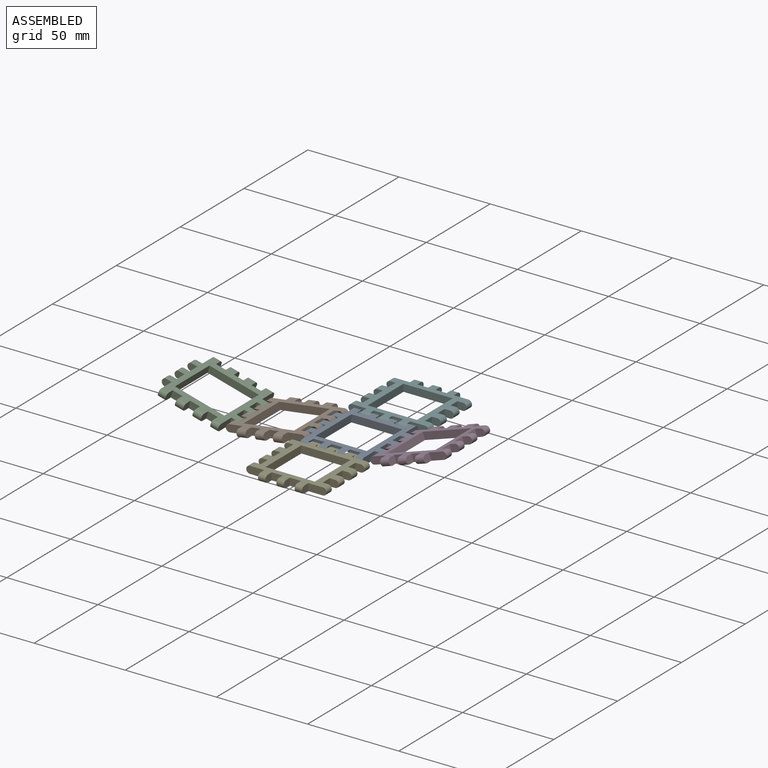
[diagram: assembled view]
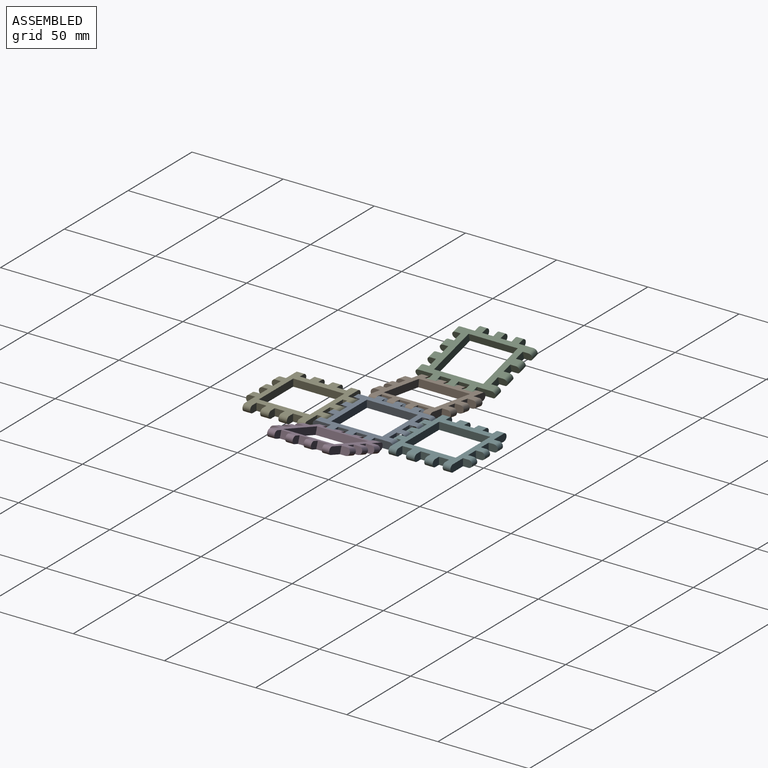
[diagram: assembled view, second angle]
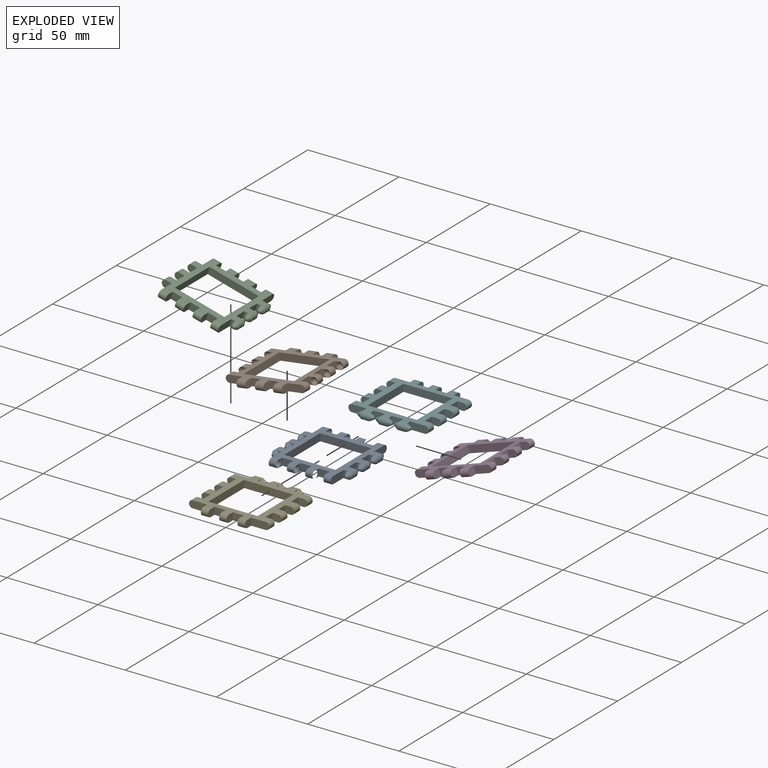
[diagram: exploded view]
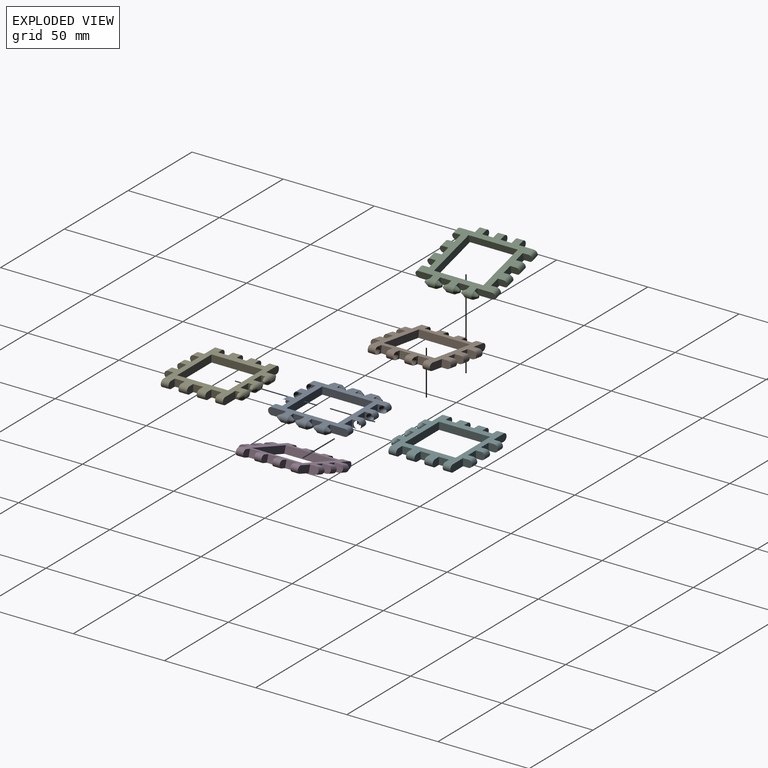
[diagram: exploded view, second angle]
ASSEMBLY  parts=6 mates=5
PART A: 118 faces, bbox 44x44x4 mm
  f0: plane 4x3mm, normal (1,0,0), area 5.7mm2, adj f24,f42,f43,f101
  f1: plane 4x3mm, normal (1,0,0), area 5.7mm2, adj f22,f42,f43,f99
  f2: plane 4x3mm, normal (1,0,0), area 5.7mm2, adj f20,f42,f43,f91
  f3: plane 28x4mm, normal (-1,0,0), area 112mm2, adj f4,f41,f42,f43
  f4: plane 28x4mm, normal (0,1,0), area 112mm2, adj f3,f5,f42,f43
  f5: plane 28x4mm, normal (1,0,0), area 112mm2, adj f4,f41,f42,f43
  f6: plane 4x3mm, normal (1,0,0), area 5.7mm2, adj f7,f42,f43,f106
  f7: plane 6x4mm, normal (0,-1,0), area 24mm2, adj f6,f8,f42,f43
  f8: plane 4x3mm, normal (-1,0,0), area 5.7mm2, adj f7,f42,f43,f104
  f9: plane 9.95x4mm, normal (1,0,0), area 38.1mm2, adj f10,f42,f43,f50
  f10: plane 4x3mm, normal (0,-1,0), area 5.7mm2, adj f9,f42,f43,f58
  f11: plane 4x3mm, normal (0,1,0), area 5.7mm2, adj f12,f42,f43,f61
  f12: plane 6.05x4mm, normal (1,0,0), area 24.2mm2, adj f11,f13,f42,f43
  f13: plane 4x3mm, normal (0,-1,0), area 5.7mm2, adj f12,f42,f43,f63
  f14: plane 4x3mm, normal (0,1,0), area 5.7mm2, adj f15,f42,f43,f68
  f15: plane 6.05x4mm, normal (1,0,0), area 24.2mm2, adj f14,f16,f42,f43
  f16: plane 4x3mm, normal (0,-1,0), area 5.7mm2, adj f15,f42,f43,f65
  f17: plane 4x3mm, normal (0,1,0), area 5.7mm2, adj f18,f42,f43,f71
  f18: plane 9.95x4mm, normal (1,0,0), area 38.1mm2, adj f17,f42,f43,f54
  f19: plane 4x3mm, normal (-1,0,0), area 5.7mm2, adj f20,f42,f43,f89
  f20: plane 6x4mm, normal (0,1,0), area 24mm2, adj f2,f19,f42,f43
  f21: plane 4x3mm, normal (-1,0,0), area 5.7mm2, adj f22,f42,f43,f94
  f22: plane 6x4mm, normal (0,1,0), area 24mm2, adj f1,f21,f42,f43
  f23: plane 4x3mm, normal (-1,0,0), area 5.7mm2, adj f24,f42,f43,f97
  f24: plane 6x4mm, normal (0,1,0), area 24mm2, adj f0,f23,f42,f43
  f25: plane 9.95x4mm, normal (-1,0,0), area 38.1mm2, adj f26,f42,f43,f57
  f26: plane 4x3mm, normal (0,1,0), area 5.7mm2, adj f25,f42,f43,f86
  f27: plane 4x3mm, normal (0,-1,0), area 5.7mm2, adj f28,f42,f43,f80
  f28: plane 6.05x4mm, normal (-1,0,0), area 24.2mm2, adj f27,f29,f42,f43
  f29: plane 4x3mm, normal (0,1,0), area 5.7mm2, adj f28,f42,f43,f83
  f30: plane 4x3mm, normal (0,-1,0), area 5.7mm2, adj f31,f42,f43,f78
  f31: plane 6.05x4mm, normal (-1,0,0), area 24.2mm2, adj f30,f32,f42,f43
  f32: plane 4x3mm, normal (0,1,0), area 5.7mm2, adj f31,f42,f43,f76
  f33: plane 4x3mm, normal (0,-1,0), area 5.7mm2, adj f34,f42,f43,f73
  f34: plane 9.95x4mm, normal (-1,0,0), area 38.1mm2, adj f33,f42,f43,f53
  f35: plane 4x3mm, normal (1,0,0), area 5.7mm2, adj f36,f42,f43,f116
  f36: plane 6x4mm, normal (0,-1,0), area 24mm2, adj f35,f37,f42,f43
  f37: plane 4x3mm, normal (-1,0,0), area 5.7mm2, adj f36,f42,f43,f112
  f38: plane 4x3mm, normal (1,0,0), area 5.7mm2, adj f39,f42,f43,f114
  f39: plane 6x4mm, normal (0,-1,0), area 24mm2, adj f38,f40,f42,f43
  f40: plane 4x3mm, normal (-1,0,0), area 5.7mm2, adj f39,f42,f43,f109
  f41: plane 28x4mm, normal (0,-1,0), area 112mm2, adj f3,f5,f42,f43
  f42: plane 40x40mm, normal (0,0,1), area 540mm2, adj f0,f1,f2,f3,f4,f5,f6,f7
  f43: plane 40x40mm, normal (0,0,-1), area 540mm2, adj f0,f1,f2,f3,f4,f5,f6,f7
  f44: cylinder r=2mm len=4mm, axis (0,-1,0), area 25.1mm2, adj f42,f43,f58,f60
  f45: cylinder r=2mm len=4mm, axis (0,-1,0), area 25.1mm2, adj f42,f43,f63,f67
  f46: cylinder r=2mm len=4mm, axis (0,-1,0), area 25.1mm2, adj f42,f43,f65,f70
  f47: cylinder r=2mm len=4mm, axis (0,-1,0), area 25.1mm2, adj f42,f43,f73,f75
  f48: cylinder r=2mm len=4mm, axis (0,-1,0), area 25.1mm2, adj f42,f43,f78,f82
  f49: cylinder r=2mm len=4mm, axis (0,-1,0), area 25.1mm2, adj f42,f43,f80,f85
  f50: cylinder r=2mm len=4mm, axis (1,0,0), area 25.1mm2, adj f9,f42,f43,f103
  f51: cylinder r=2mm len=4mm, axis (1,0,0), area 25.1mm2, adj f42,f43,f106,f108
  f52: cylinder r=2mm len=4mm, axis (1,0,0), area 25.1mm2, adj f42,f43,f111,f114
  f53: cylinder r=2mm len=4mm, axis (1,0,0), area 25.1mm2, adj f34,f42,f43,f116
  f54: cylinder r=2mm len=4mm, axis (1,0,0), area 25.1mm2, adj f18,f42,f43,f88
  f55: cylinder r=2mm len=4mm, axis (1,0,0), area 25.1mm2, adj f42,f43,f91,f93
  f56: cylinder r=2mm len=4mm, axis (1,0,0), area 25.1mm2, adj f42,f43,f96,f99
  f57: cylinder r=2mm len=4mm, axis (1,0,0), area 25.1mm2, adj f25,f42,f43,f101
  f58: cone r=2mm half-angle=28.4deg, axis (0,1,0), area 23.5mm2, adj f10,f44,f59
  f59: plane 1.34x1.34mm, normal (0,-1,0), area 1.4mm2, adj f58
  f60: cone r=2mm half-angle=28.4deg, axis (0,-1,0), area 11.7mm2, adj f44,f61,f62
  f61: bspline ~4.01x2.96mm, area 11.7mm2, adj f11,f60,f62
  f62: plane 1.34x1.34mm, normal (0,1,0), area 1.4mm2, adj f60,f61
  f63: cone r=2mm half-angle=28.4deg, axis (0,1,0), area 23.5mm2, adj f13,f45,f64
  f64: plane 1.34x1.34mm, normal (0,-1,0), area 1.4mm2, adj f63
  f65: cone r=2mm half-angle=28.4deg, axis (0,1,0), area 23.5mm2, adj f16,f46,f66
  f66: plane 1.34x1.34mm, normal (0,-1,0), area 1.4mm2, adj f65
  f67: cone r=2mm half-angle=28.4deg, axis (0,-1,0), area 11.7mm2, adj f45,f68,f69
  f68: bspline ~4.01x2.96mm, area 11.7mm2, adj f14,f67,f69
  f69: plane 1.34x1.34mm, normal (0,1,0), area 1.4mm2, adj f67,f68
  f70: cone r=2mm half-angle=28.4deg, axis (0,-1,0), area 11.7mm2, adj f46,f71,f72
  f71: bspline ~4.01x2.96mm, area 11.7mm2, adj f17,f70,f72
  f72: plane 1.34x1.34mm, normal (0,1,0), area 1.4mm2, adj f70,f71
  f73: cone r=2mm half-angle=28.4deg, axis (0,1,0), area 23.5mm2, adj f33,f47,f74
  f74: plane 1.34x1.34mm, normal (0,-1,0), area 1.4mm2, adj f73
  f75: cone r=2mm half-angle=28.4deg, axis (0,-1,0), area 11.7mm2, adj f47,f76,f77
  f76: bspline ~4.01x2.96mm, area 11.7mm2, adj f32,f75,f77
  f77: plane 1.34x1.34mm, normal (0,1,0), area 1.4mm2, adj f75,f76
  f78: cone r=2mm half-angle=28.4deg, axis (0,1,0), area 23.5mm2, adj f30,f48,f79
  f79: plane 1.34x1.34mm, normal (0,-1,0), area 1.4mm2, adj f78
  f80: cone r=2mm half-angle=28.4deg, axis (0,1,0), area 23.5mm2, adj f27,f49,f81
  f81: plane 1.34x1.34mm, normal (0,-1,0), area 1.4mm2, adj f80
  f82: cone r=2mm half-angle=28.4deg, axis (0,-1,0), area 11.7mm2, adj f48,f83,f84
  f83: bspline ~4.01x2.96mm, area 11.7mm2, adj f29,f82,f84
  f84: plane 1.34x1.34mm, normal (0,1,0), area 1.4mm2, adj f82,f83
  f85: cone r=2mm half-angle=28.4deg, axis (0,-1,0), area 11.7mm2, adj f49,f86,f87
  f86: bspline ~4.01x2.96mm, area 11.7mm2, adj f26,f85,f87
  f87: plane 1.34x1.34mm, normal (0,1,0), area 1.4mm2, adj f85,f86
  f88: cone r=2mm half-angle=33.7deg, axis (-1,0,0), area 9.5mm2, adj f54,f89,f90
  f89: bspline ~4.01x2.17mm, area 9.5mm2, adj f19,f88,f90
  f90: plane 1.6x1.6mm, normal (-1,0,0), area 2mm2, adj f88,f89
  f91: cone r=2mm half-angle=33.7deg, axis (1,0,0), area 19mm2, adj f2,f55,f92
  f92: plane 1.6x1.6mm, normal (1,0,0), area 2mm2, adj f91
  f93: cone r=2mm half-angle=33.7deg, axis (-1,0,0), area 9.5mm2, adj f55,f94,f95
  f94: bspline ~4.01x2.17mm, area 9.5mm2, adj f21,f93,f95
  f95: plane 1.6x1.6mm, normal (-1,0,0), area 2mm2, adj f93,f94
  f96: cone r=2mm half-angle=33.7deg, axis (-1,0,0), area 9.5mm2, adj f56,f97,f98
  f97: bspline ~4.01x2.17mm, area 9.5mm2, adj f23,f96,f98
  f98: plane 1.6x1.6mm, normal (-1,0,0), area 2mm2, adj f96,f97
  f99: cone r=2mm half-angle=33.7deg, axis (1,0,0), area 19mm2, adj f1,f56,f100
  f100: plane 1.6x1.6mm, normal (1,0,0), area 2mm2, adj f99
  f101: cone r=2mm half-angle=33.7deg, axis (1,0,0), area 19mm2, adj f0,f57,f102
  f102: plane 1.6x1.6mm, normal (1,0,0), area 2mm2, adj f101
  f103: cone r=2mm half-angle=33.7deg, axis (-1,0,0), area 9.5mm2, adj f50,f104,f105
  f104: bspline ~4.01x2.17mm, area 9.5mm2, adj f8,f103,f105
  f105: plane 1.6x1.6mm, normal (-1,0,0), area 2mm2, adj f103,f104
  f106: cone r=2mm half-angle=33.7deg, axis (1,0,0), area 19mm2, adj f6,f51,f107
  f107: plane 1.6x1.6mm, normal (1,0,0), area 2mm2, adj f106
  f108: cone r=2mm half-angle=33.7deg, axis (-1,0,0), area 9.5mm2, adj f51,f109,f110
  f109: bspline ~4.01x2.17mm, area 9.5mm2, adj f40,f108,f110
  f110: plane 1.6x1.6mm, normal (-1,0,0), area 2mm2, adj f108,f109
  f111: cone r=2mm half-angle=33.7deg, axis (-1,0,0), area 9.5mm2, adj f52,f112,f113
  f112: bspline ~4.01x2.17mm, area 9.5mm2, adj f37,f111,f113
  f113: plane 1.6x1.6mm, normal (-1,0,0), area 2mm2, adj f111,f112
  f114: cone r=2mm half-angle=33.7deg, axis (1,0,0), area 19mm2, adj f38,f52,f115
  f115: plane 1.6x1.6mm, normal (1,0,0), area 2mm2, adj f114
  f116: cone r=2mm half-angle=33.7deg, axis (1,0,0), area 19mm2, adj f35,f53,f117
  f117: plane 1.6x1.6mm, normal (1,0,0), area 2mm2, adj f116
PART B: 88 faces, bbox 44x44x4 mm
  f0: plane 4x3mm, normal (0,-1,0), area 5.7mm2, adj f34,f42,f43,f82
  f1: plane 4x3mm, normal (0,-1,0), area 5.7mm2, adj f36,f42,f43,f79
  f2: plane 4x3mm, normal (0,-1,0), area 5.7mm2, adj f38,f42,f43,f74
  f3: plane 4x3mm, normal (0,-1,0), area 5.7mm2, adj f21,f42,f43,f67
  f4: plane 4x3mm, normal (0,-1,0), area 5.7mm2, adj f19,f42,f43,f64
  f5: plane 4x3mm, normal (0,-1,0), area 5.7mm2, adj f17,f42,f43,f59
  f6: plane 28x4mm, normal (0,-1,0), area 112mm2, adj f7,f41,f42,f43
  f7: plane 28x4mm, normal (-1,0,0), area 112mm2, adj f6,f8,f42,f43
  f8: plane 28x4mm, normal (0,1,0), area 112mm2, adj f7,f41,f42,f43
  f9: plane 5x4mm, normal (-1,0,0), area 18.3mm2, adj f10,f42,f43,f47
  f10: plane 5.2x4mm, normal (0,1,0), area 20.8mm2, adj f9,f11,f42,f43
  f11: plane 5x4mm, normal (1,0,0), area 18.3mm2, adj f10,f42,f43,f49
  f12: plane 5x4mm, normal (-1,0,0), area 18.3mm2, adj f13,f42,f43,f49
  f13: plane 5.2x4mm, normal (0,1,0), area 20.8mm2, adj f12,f14,f42,f43
  f14: plane 5x4mm, normal (1,0,0), area 18.3mm2, adj f13,f42,f43,f48
  f15: plane 5x4mm, normal (-1,0,0), area 18.3mm2, adj f16,f42,f43,f48
  f16: plane 9.5x4mm, normal (0,1,0), area 36.3mm2, adj f15,f42,f43,f57
  f17: plane 6x4mm, normal (-1,0,0), area 24mm2, adj f5,f18,f42,f43
  f18: plane 4x3mm, normal (0,1,0), area 5.7mm2, adj f17,f42,f43,f71
  f19: plane 6x4mm, normal (-1,0,0), area 24mm2, adj f4,f20,f42,f43
  f20: plane 4x3mm, normal (0,1,0), area 5.7mm2, adj f19,f42,f43,f69
  f21: plane 6x4mm, normal (-1,0,0), area 24mm2, adj f3,f22,f42,f43
  f22: plane 4x3mm, normal (0,1,0), area 5.7mm2, adj f21,f42,f43,f61
  f23: plane 9.5x4mm, normal (0,-1,0), area 36.3mm2, adj f24,f42,f43,f54
  f24: plane 5x4mm, normal (-1,0,0), area 18.3mm2, adj f23,f42,f43,f45
  f25: plane 5x4mm, normal (1,0,0), area 18.3mm2, adj f26,f42,f43,f45
  f26: plane 5.2x4mm, normal (0,-1,0), area 20.8mm2, adj f25,f27,f42,f43
  f27: plane 5x4mm, normal (-1,0,0), area 18.3mm2, adj f26,f42,f43,f46
  f28: plane 5x4mm, normal (1,0,0), area 18.3mm2, adj f29,f42,f43,f46
  f29: plane 5.2x4mm, normal (0,-1,0), area 20.8mm2, adj f28,f30,f42,f43
  f30: plane 5x4mm, normal (-1,0,0), area 18.3mm2, adj f29,f42,f43,f44
  f31: plane 5x4mm, normal (1,0,0), area 18.3mm2, adj f32,f42,f43,f44
  f32: plane 9.5x4mm, normal (0,-1,0), area 36.3mm2, adj f31,f42,f43,f50
  f33: plane 4x3mm, normal (0,1,0), area 5.7mm2, adj f34,f42,f43,f76
  f34: plane 6x4mm, normal (1,0,0), area 24mm2, adj f0,f33,f42,f43
  f35: plane 4x3mm, normal (0,1,0), area 5.7mm2, adj f36,f42,f43,f84
  f36: plane 6x4mm, normal (1,0,0), area 24mm2, adj f1,f35,f42,f43
  f37: plane 4x3mm, normal (0,1,0), area 5.7mm2, adj f38,f42,f43,f86
  f38: plane 6x4mm, normal (1,0,0), area 24mm2, adj f2,f37,f42,f43
  f39: plane 9.5x4mm, normal (0,1,0), area 36.3mm2, adj f40,f42,f43,f53
  f40: plane 5x4mm, normal (1,0,0), area 18.3mm2, adj f39,f42,f43,f47
  f41: plane 28x4mm, normal (1,0,0), area 112mm2, adj f6,f8,f42,f43
  f42: plane 40x40mm, normal (0,0,1), area 555.6mm2, adj f0,f1,f2,f3,f4,f5,f6,f7
  f43: plane 40x40mm, normal (0,0,-1), area 555.6mm2, adj f0,f1,f2,f3,f4,f5,f6,f7
  f44: cylinder r=2mm len=4.9mm, axis (1,0,0), area 30.8mm2, adj f30,f31,f42,f43
  f45: cylinder r=2mm len=4.9mm, axis (-1,0,0), area 30.8mm2, adj f24,f25,f42,f43
  f46: cylinder r=2mm len=4.8mm, axis (1,0,0), area 30.2mm2, adj f27,f28,f42,f43
  f47: cylinder r=2mm len=4.9mm, axis (1,0,0), area 30.8mm2, adj f9,f40,f42,f43
  f48: cylinder r=2mm len=4.9mm, axis (-1,0,0), area 30.8mm2, adj f14,f15,f42,f43
  f49: cylinder r=2mm len=4.8mm, axis (1,0,0), area 30.2mm2, adj f11,f12,f42,f43
  f50: cylinder r=2mm len=4mm, axis (0,-1,0), area 25.1mm2, adj f32,f42,f43,f76
  f51: cylinder r=2mm len=4mm, axis (0,-1,0), area 25.1mm2, adj f42,f43,f81,f84
  f52: cylinder r=2mm len=4mm, axis (0,-1,0), area 25.1mm2, adj f42,f43,f78,f86
  f53: cylinder r=2mm len=4mm, axis (0,-1,0), area 25.1mm2, adj f39,f42,f43,f73
  f54: cylinder r=2mm len=4mm, axis (0,-1,0), area 25.1mm2, adj f23,f42,f43,f61
  f55: cylinder r=2mm len=4mm, axis (0,-1,0), area 25.1mm2, adj f42,f43,f66,f69
  f56: cylinder r=2mm len=4mm, axis (0,-1,0), area 25.1mm2, adj f42,f43,f63,f71
  f57: cylinder r=2mm len=4mm, axis (0,-1,0), area 25.1mm2, adj f16,f42,f43,f58
  f58: cone r=2mm half-angle=33.7deg, axis (0,-1,0), area 9.5mm2, adj f57,f59,f60
  f59: bspline ~4.01x2.17mm, area 9.5mm2, adj f5,f58,f60
  f60: plane 1.6x1.6mm, normal (0,-1,0), area 2mm2, adj f58,f59
  f61: cone r=2mm half-angle=33.7deg, axis (0,1,0), area 19mm2, adj f22,f54,f62
  f62: plane 1.6x1.6mm, normal (0,1,0), area 2mm2, adj f61
  f63: cone r=2mm half-angle=33.7deg, axis (0,-1,0), area 9.5mm2, adj f56,f64,f65
  f64: bspline ~4.01x2.17mm, area 9.5mm2, adj f4,f63,f65
  f65: plane 1.6x1.6mm, normal (0,-1,0), area 2mm2, adj f63,f64
  f66: cone r=2mm half-angle=33.7deg, axis (0,-1,0), area 9.5mm2, adj f55,f67,f68
  f67: bspline ~4.01x2.17mm, area 9.5mm2, adj f3,f66,f68
  f68: plane 1.6x1.6mm, normal (0,-1,0), area 2mm2, adj f66,f67
  f69: cone r=2mm half-angle=33.7deg, axis (0,1,0), area 19mm2, adj f20,f55,f70
  f70: plane 1.6x1.6mm, normal (0,1,0), area 2mm2, adj f69
  f71: cone r=2mm half-angle=33.7deg, axis (0,1,0), area 19mm2, adj f18,f56,f72
  f72: plane 1.6x1.6mm, normal (0,1,0), area 2mm2, adj f71
  f73: cone r=2mm half-angle=33.7deg, axis (0,-1,0), area 9.5mm2, adj f53,f74,f75
  f74: bspline ~4.01x2.17mm, area 9.5mm2, adj f2,f73,f75
  f75: plane 1.6x1.6mm, normal (0,-1,0), area 2mm2, adj f73,f74
  f76: cone r=2mm half-angle=33.7deg, axis (0,1,0), area 19mm2, adj f33,f50,f77
  f77: plane 1.6x1.6mm, normal (0,1,0), area 2mm2, adj f76
  f78: cone r=2mm half-angle=33.7deg, axis (0,-1,0), area 9.5mm2, adj f52,f79,f80
  f79: bspline ~4.01x2.17mm, area 9.5mm2, adj f1,f78,f80
  f80: plane 1.6x1.6mm, normal (0,-1,0), area 2mm2, adj f78,f79
  f81: cone r=2mm half-angle=33.7deg, axis (0,-1,0), area 9.5mm2, adj f51,f82,f83
  f82: bspline ~4.01x2.17mm, area 9.5mm2, adj f0,f81,f83
  f83: plane 1.6x1.6mm, normal (0,-1,0), area 2mm2, adj f81,f82
  f84: cone r=2mm half-angle=33.7deg, axis (0,1,0), area 19mm2, adj f35,f51,f85
  f85: plane 1.6x1.6mm, normal (0,1,0), area 2mm2, adj f84
  f86: cone r=2mm half-angle=33.7deg, axis (0,1,0), area 19mm2, adj f37,f52,f87
  f87: plane 1.6x1.6mm, normal (0,1,0), area 2mm2, adj f86
PART C: 73 faces, bbox 44x44x4 mm
  f0: plane 4x3mm, normal (0,-1,0), area 5.7mm2, adj f35,f42,f43,f65
  f1: plane 4x3mm, normal (0,-1,0), area 5.7mm2, adj f33,f42,f43,f63
  f2: plane 4x3mm, normal (0,-1,0), area 5.7mm2, adj f31,f42,f43,f58
  f3: plane 28x4mm, normal (0,-1,0), area 112mm2, adj f4,f41,f42,f43
  f4: plane 27x4mm, normal (-1,0,0), area 108mm2, adj f3,f5,f42,f43
  f5: plane 28x4mm, normal (0,1,0), area 112mm2, adj f4,f41,f42,f43
  f6: plane 5x4mm, normal (-1,0,0), area 18.3mm2, adj f7,f42,f43,f47
  f7: plane 5.4x4mm, normal (0,1,0), area 21.6mm2, adj f6,f8,f42,f43
  f8: plane 5x4mm, normal (1,0,0), area 18.3mm2, adj f7,f42,f43,f45
  f9: plane 5x4mm, normal (-1,0,0), area 18.3mm2, adj f10,f42,f43,f45
  f10: plane 5.5x4mm, normal (0,1,0), area 22mm2, adj f9,f11,f42,f43
  f11: plane 5x4mm, normal (1,0,0), area 18.3mm2, adj f10,f42,f43,f44
  f12: plane 9.95x4mm, normal (-1,0,0), area 38.1mm2, adj f13,f42,f43,f44
  f13: plane 5x4mm, normal (0,1,0), area 18.3mm2, adj f12,f42,f43,f52
  f14: plane 5x4mm, normal (0,-1,0), area 18.3mm2, adj f15,f42,f43,f52
  f15: plane 6.05x4mm, normal (-1,0,0), area 24.2mm2, adj f14,f16,f42,f43
  f16: plane 5x4mm, normal (0,1,0), area 18.3mm2, adj f15,f42,f43,f53
  f17: plane 5x4mm, normal (0,-1,0), area 18.3mm2, adj f18,f42,f43,f53
  f18: plane 6.05x4mm, normal (-1,0,0), area 24.2mm2, adj f17,f19,f42,f43
  f19: plane 5x4mm, normal (0,1,0), area 18.3mm2, adj f18,f42,f43,f54
  f20: plane 5x4mm, normal (0,-1,0), area 18.3mm2, adj f21,f42,f43,f54
  f21: plane 9.95x4mm, normal (-1,0,0), area 38.1mm2, adj f20,f42,f43,f48
  f22: plane 5x4mm, normal (1,0,0), area 18.3mm2, adj f23,f42,f43,f48
  f23: plane 5.5x4mm, normal (0,-1,0), area 22mm2, adj f22,f24,f42,f43
  f24: plane 5x4mm, normal (-1,0,0), area 18.3mm2, adj f23,f42,f43,f49
  f25: plane 5x4mm, normal (1,0,0), area 18.3mm2, adj f26,f42,f43,f49
  f26: plane 5.4x4mm, normal (0,-1,0), area 21.6mm2, adj f25,f27,f42,f43
  f27: plane 5x4mm, normal (-1,0,0), area 18.3mm2, adj f26,f42,f43,f51
  f28: plane 5x4mm, normal (1,0,0), area 18.3mm2, adj f29,f42,f43,f51
  f29: plane 5.5x4mm, normal (0,-1,0), area 22mm2, adj f28,f30,f42,f43
  f30: plane 5x4mm, normal (-1,0,0), area 18.3mm2, adj f29,f42,f43,f50
  f31: plane 9.95x4mm, normal (1,0,0), area 38.1mm2, adj f2,f42,f43,f50
  f32: plane 4x3mm, normal (0,1,0), area 5.7mm2, adj f33,f42,f43,f71
  f33: plane 6.05x4mm, normal (1,0,0), area 24.2mm2, adj f1,f32,f42,f43
  f34: plane 4x3mm, normal (0,1,0), area 5.7mm2, adj f35,f42,f43,f68
  f35: plane 6.05x4mm, normal (1,0,0), area 24.2mm2, adj f0,f34,f42,f43
  f36: plane 4x3mm, normal (0,1,0), area 5.7mm2, adj f37,f42,f43,f61
  f37: plane 9.95x4mm, normal (1,0,0), area 38.1mm2, adj f36,f42,f43,f46
  f38: plane 5x4mm, normal (-1,0,0), area 18.3mm2, adj f39,f42,f43,f46
  f39: plane 5.5x4mm, normal (0,1,0), area 22mm2, adj f38,f40,f42,f43
  f40: plane 5x4mm, normal (1,0,0), area 18.3mm2, adj f39,f42,f43,f47
  f41: plane 27x4mm, normal (1,0,0), area 108mm2, adj f3,f5,f42,f43
  f42: plane 40x40mm, normal (0,0,1), area 577.6mm2, adj f0,f1,f2,f3,f4,f5,f6,f7
  f43: plane 40x40mm, normal (0,0,-1), area 577.6mm2, adj f0,f1,f2,f3,f4,f5,f6,f7
  f44: cylinder r=2mm len=4.2mm, axis (-1,0,0), area 26.4mm2, adj f11,f12,f42,f43
  f45: cylinder r=2mm len=4.6mm, axis (-1,0,0), area 28.9mm2, adj f8,f9,f42,f43
  f46: cylinder r=2mm len=4.2mm, axis (1,0,0), area 26.4mm2, adj f37,f38,f42,f43
  f47: cylinder r=2mm len=4.6mm, axis (1,0,0), area 28.9mm2, adj f6,f40,f42,f43
  f48: cylinder r=2mm len=4.2mm, axis (-1,0,0), area 26.4mm2, adj f21,f22,f42,f43
  f49: cylinder r=2mm len=4.6mm, axis (-1,0,0), area 28.9mm2, adj f24,f25,f42,f43
  f50: cylinder r=2mm len=4.2mm, axis (1,0,0), area 26.4mm2, adj f30,f31,f42,f43
  f51: cylinder r=2mm len=4.6mm, axis (1,0,0), area 28.9mm2, adj f27,f28,f42,f43
  f52: cylinder r=2mm len=4mm, axis (0,1,0), area 25.1mm2, adj f13,f14,f42,f43
  f53: cylinder r=2mm len=4mm, axis (0,1,0), area 25.1mm2, adj f16,f17,f42,f43
  f54: cylinder r=2mm len=4mm, axis (0,1,0), area 25.1mm2, adj f19,f20,f42,f43
  f55: cylinder r=2mm len=4mm, axis (0,1,0), area 25.1mm2, adj f42,f43,f60,f65
  f56: cylinder r=2mm len=4mm, axis (0,1,0), area 25.1mm2, adj f42,f43,f63,f67
  f57: cylinder r=2mm len=4mm, axis (0,1,0), area 25.1mm2, adj f42,f43,f58,f70
  f58: cone r=2mm half-angle=28.4deg, axis (0,1,0), area 23.5mm2, adj f2,f57,f59
  f59: plane 1.34x1.34mm, normal (0,-1,0), area 1.4mm2, adj f58
  f60: cone r=2mm half-angle=28.4deg, axis (0,-1,0), area 11.7mm2, adj f55,f61,f62
  f61: bspline ~4.01x2.96mm, area 11.7mm2, adj f36,f60,f62
  f62: plane 1.34x1.34mm, normal (0,1,0), area 1.4mm2, adj f60,f61
  f63: cone r=2mm half-angle=28.4deg, axis (0,1,0), area 23.5mm2, adj f1,f56,f64
  f64: plane 1.34x1.34mm, normal (0,-1,0), area 1.4mm2, adj f63
  f65: cone r=2mm half-angle=28.4deg, axis (0,1,0), area 23.5mm2, adj f0,f55,f66
  f66: plane 1.34x1.34mm, normal (0,-1,0), area 1.4mm2, adj f65
  f67: cone r=2mm half-angle=28.4deg, axis (0,-1,0), area 11.7mm2, adj f56,f68,f69
  f68: bspline ~4.01x2.96mm, area 11.7mm2, adj f34,f67,f69
  f69: plane 1.34x1.34mm, normal (0,1,0), area 1.4mm2, adj f67,f68
  f70: cone r=2mm half-angle=28.4deg, axis (0,-1,0), area 11.7mm2, adj f57,f71,f72
  f71: bspline ~4.01x2.96mm, area 11.7mm2, adj f32,f70,f72
  f72: plane 1.34x1.34mm, normal (0,1,0), area 1.4mm2, adj f70,f71
PART D: 73 faces, bbox 44x44x4 mm
  f0: plane 4x3mm, normal (0,-1,0), area 5.7mm2, adj f28,f42,f43,f65
  f1: plane 4x3mm, normal (0,-1,0), area 5.7mm2, adj f30,f42,f43,f63
  f2: plane 4x3mm, normal (0,-1,0), area 5.7mm2, adj f32,f42,f43,f61
  f3: plane 28x4mm, normal (0,-1,0), area 112mm2, adj f4,f41,f42,f43
  f4: plane 28x4mm, normal (-1,0,0), area 112mm2, adj f3,f5,f42,f43
  f5: plane 28x4mm, normal (0,1,0), area 112mm2, adj f4,f41,f42,f43
  f6: plane 5x4mm, normal (-1,0,0), area 18.3mm2, adj f7,f42,f43,f56
  f7: plane 9.5x4mm, normal (0,1,0), area 36.3mm2, adj f6,f42,f43,f51
  f8: plane 5x4mm, normal (0,-1,0), area 18.3mm2, adj f9,f42,f43,f51
  f9: plane 6x4mm, normal (-1,0,0), area 24mm2, adj f8,f10,f42,f43
  f10: plane 5x4mm, normal (0,1,0), area 18.3mm2, adj f9,f42,f43,f50
  f11: plane 5x4mm, normal (0,-1,0), area 18.3mm2, adj f12,f42,f43,f50
  f12: plane 6x4mm, normal (-1,0,0), area 24mm2, adj f11,f13,f42,f43
  f13: plane 5x4mm, normal (0,1,0), area 18.3mm2, adj f12,f42,f43,f49
  f14: plane 5x4mm, normal (0,-1,0), area 18.3mm2, adj f15,f42,f43,f49
  f15: plane 6x4mm, normal (-1,0,0), area 24mm2, adj f14,f16,f42,f43
  f16: plane 5x4mm, normal (0,1,0), area 18.3mm2, adj f15,f42,f43,f48
  f17: plane 9.5x4mm, normal (0,-1,0), area 36.3mm2, adj f18,f42,f43,f48
  f18: plane 5x4mm, normal (-1,0,0), area 18.3mm2, adj f17,f42,f43,f53
  f19: plane 5x4mm, normal (1,0,0), area 18.3mm2, adj f20,f42,f43,f53
  f20: plane 5.2x4mm, normal (0,-1,0), area 20.8mm2, adj f19,f21,f42,f43
  f21: plane 5x4mm, normal (-1,0,0), area 18.3mm2, adj f20,f42,f43,f54
  f22: plane 5x4mm, normal (1,0,0), area 18.3mm2, adj f23,f42,f43,f54
  f23: plane 5.2x4mm, normal (0,-1,0), area 20.8mm2, adj f22,f24,f42,f43
  f24: plane 5x4mm, normal (-1,0,0), area 18.3mm2, adj f23,f42,f43,f52
  f25: plane 5x4mm, normal (1,0,0), area 18.3mm2, adj f26,f42,f43,f52
  f26: plane 9.5x4mm, normal (0,-1,0), area 36.3mm2, adj f25,f42,f43,f44
  f27: plane 4x3mm, normal (0,1,0), area 5.7mm2, adj f28,f42,f43,f59
  f28: plane 6x4mm, normal (1,0,0), area 24mm2, adj f0,f27,f42,f43
  f29: plane 4x3mm, normal (0,1,0), area 5.7mm2, adj f30,f42,f43,f68
  f30: plane 6x4mm, normal (1,0,0), area 24mm2, adj f1,f29,f42,f43
  f31: plane 4x3mm, normal (0,1,0), area 5.7mm2, adj f32,f42,f43,f71
  f32: plane 6x4mm, normal (1,0,0), area 24mm2, adj f2,f31,f42,f43
  f33: plane 9.5x4mm, normal (0,1,0), area 36.3mm2, adj f34,f42,f43,f47
  f34: plane 5x4mm, normal (1,0,0), area 18.3mm2, adj f33,f42,f43,f55
  f35: plane 5x4mm, normal (-1,0,0), area 18.3mm2, adj f36,f42,f43,f55
  f36: plane 5.2x4mm, normal (0,1,0), area 20.8mm2, adj f35,f37,f42,f43
  f37: plane 5x4mm, normal (1,0,0), area 18.3mm2, adj f36,f42,f43,f57
  f38: plane 5x4mm, normal (-1,0,0), area 18.3mm2, adj f39,f42,f43,f57
  f39: plane 5.2x4mm, normal (0,1,0), area 20.8mm2, adj f38,f40,f42,f43
  f40: plane 5x4mm, normal (1,0,0), area 18.3mm2, adj f39,f42,f43,f56
  f41: plane 28x4mm, normal (1,0,0), area 112mm2, adj f3,f5,f42,f43
  f42: plane 40x40mm, normal (0,0,1), area 555.6mm2, adj f0,f1,f2,f3,f4,f5,f6,f7
  f43: plane 40x40mm, normal (0,0,-1), area 555.6mm2, adj f0,f1,f2,f3,f4,f5,f6,f7
  f44: cylinder r=2mm len=4mm, axis (0,-1,0), area 25.1mm2, adj f26,f42,f43,f58
  f45: cylinder r=2mm len=4mm, axis (0,-1,0), area 25.1mm2, adj f42,f43,f65,f67
  f46: cylinder r=2mm len=4mm, axis (0,-1,0), area 25.1mm2, adj f42,f43,f63,f70
  f47: cylinder r=2mm len=4mm, axis (0,-1,0), area 25.1mm2, adj f33,f42,f43,f61
  f48: cylinder r=2mm len=4mm, axis (0,-1,0), area 25.1mm2, adj f16,f17,f42,f43
  f49: cylinder r=2mm len=4mm, axis (0,-1,0), area 25.1mm2, adj f13,f14,f42,f43
  f50: cylinder r=2mm len=4mm, axis (0,-1,0), area 25.1mm2, adj f10,f11,f42,f43
  f51: cylinder r=2mm len=4mm, axis (0,-1,0), area 25.1mm2, adj f7,f8,f42,f43
  f52: cylinder r=2mm len=4.9mm, axis (1,0,0), area 30.8mm2, adj f24,f25,f42,f43
  f53: cylinder r=2mm len=4.9mm, axis (-1,0,0), area 30.8mm2, adj f18,f19,f42,f43
  f54: cylinder r=2mm len=4.8mm, axis (1,0,0), area 30.2mm2, adj f21,f22,f42,f43
  f55: cylinder r=2mm len=4.9mm, axis (1,0,0), area 30.8mm2, adj f34,f35,f42,f43
  f56: cylinder r=2mm len=4.9mm, axis (-1,0,0), area 30.8mm2, adj f6,f40,f42,f43
  f57: cylinder r=2mm len=4.8mm, axis (1,0,0), area 30.2mm2, adj f37,f38,f42,f43
  f58: cone r=2mm half-angle=33.7deg, axis (0,1,0), area 9.5mm2, adj f44,f59,f60
  f59: bspline ~4.01x2.17mm, area 9.5mm2, adj f27,f58,f60
  f60: plane 1.6x1.6mm, normal (0,1,0), area 2mm2, adj f58,f59
  f61: cone r=2mm half-angle=33.7deg, axis (0,-1,0), area 19mm2, adj f2,f47,f62
  f62: plane 1.6x1.6mm, normal (0,-1,0), area 2mm2, adj f61
  f63: cone r=2mm half-angle=33.7deg, axis (0,-1,0), area 19mm2, adj f1,f46,f64
  f64: plane 1.6x1.6mm, normal (0,-1,0), area 2mm2, adj f63
  f65: cone r=2mm half-angle=33.7deg, axis (0,-1,0), area 19mm2, adj f0,f45,f66
  f66: plane 1.6x1.6mm, normal (0,-1,0), area 2mm2, adj f65
  f67: cone r=2mm half-angle=33.7deg, axis (0,1,0), area 9.5mm2, adj f45,f68,f69
  f68: bspline ~4.01x2.17mm, area 9.5mm2, adj f29,f67,f69
  f69: plane 1.6x1.6mm, normal (0,1,0), area 2mm2, adj f67,f68
  f70: cone r=2mm half-angle=33.7deg, axis (0,1,0), area 9.5mm2, adj f46,f71,f72
  f71: bspline ~4.01x2.17mm, area 9.5mm2, adj f31,f70,f72
  f72: plane 1.6x1.6mm, normal (0,1,0), area 2mm2, adj f70,f71
PART E: same geometry as C
PART F: same geometry as C
PLACE A t=(6.72,-5.1,3.03)mm fixed
PLACE B rot(axis=(0,1,0),172.1deg) t=(-33.09,-4.46,0.26)mm
PLACE C rot(axis=(0,1,0),15.1deg) t=(-72.21,-4.4,2.71)mm
PLACE D rot(axis=(0.16,0,-0.99),180deg) t=(45.71,-5.04,9.3)mm
PLACE E rot(axis=(0,0,1),90deg) t=(6.78,-45.1,3.03)mm
PLACE F rot(axis=(0,0,-1),90deg) t=(6.78,34.9,3.03)mm
MATE revolute B.f54 <-> A.f47  axis (0,1,0) through (-13.28,-19.26,3.03)mm
MATE revolute C.f55 <-> B.f50  axis (0,-1,0) through (-52.9,-18.91,-2.5)mm
MATE revolute E.f55 <-> A.f50  axis (-1,0,0) through (-7.73,-25.1,3.03)mm
MATE revolute F.f55 <-> A.f54  axis (-1,0,0) through (-7.73,14.9,3.03)mm
MATE revolute D.f44 <-> A.f44  axis (0,-1,0) through (26.72,9.76,3.03)mm
